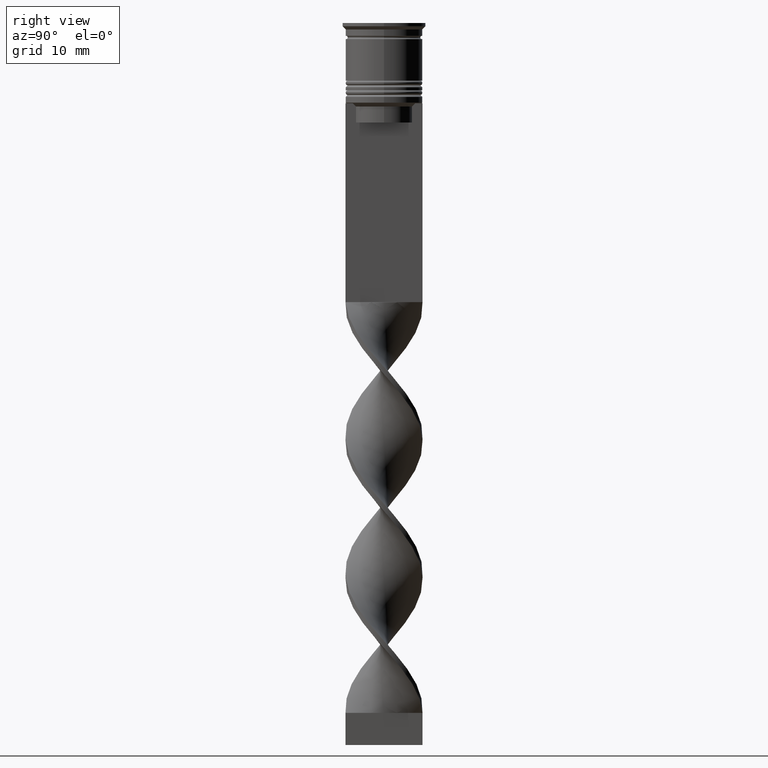
[diagram: clean part render]
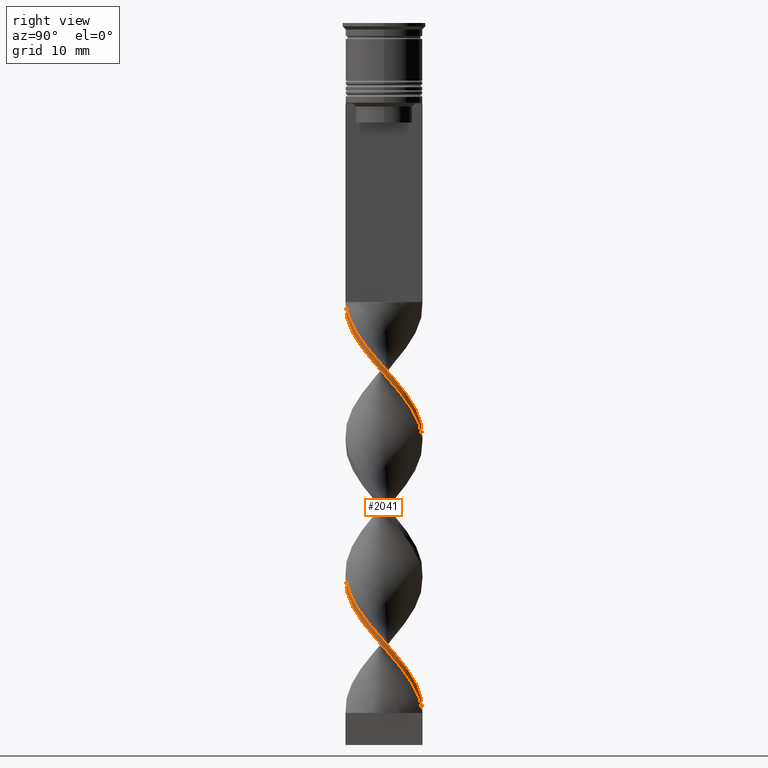
[diagram: same view with one face highlighted and labeled with its STEP entity id]
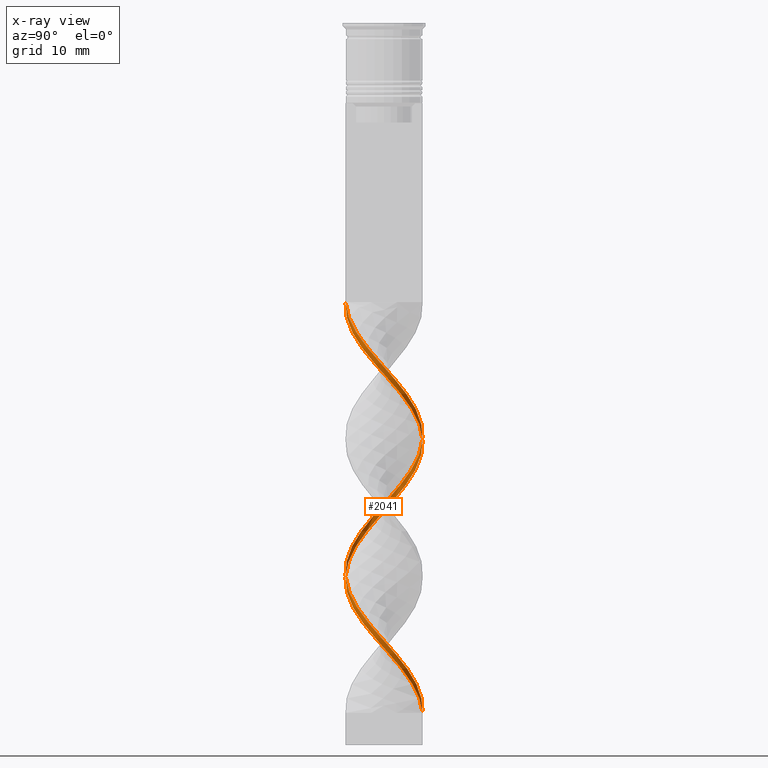
[diagram: x-ray of the same camera — body ghosted, the highlighted face saturated]
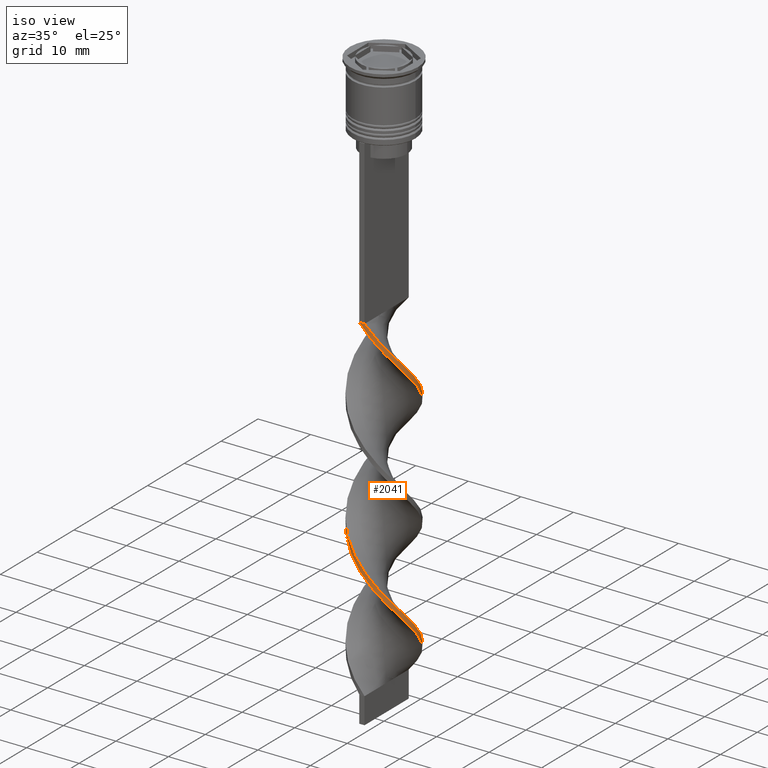
[diagram: same view with one face highlighted and labeled with its STEP entity id]
A machine part, right view. The second image highlights one B-rep face of the part: STEP entity #2041.
The next image is the same camera in x-ray: the body ghosted, the highlighted face saturated — about 0% of this face is hidden behind the body in this view.
A second angle (iso view) of the same face is appended — the face is thin or edge-on in the first view.
In plain terms, the highlighted face is a freeform B-spline surface patch.
Its self-contained STEP definition (entity closure, byte-faithful):
#1 = CARTESIAN_POINT ( 'NONE',  ( 5.747901747727229171, -1.935476698729089451, -52.52564102564103621 ) ) ;
#21 = CARTESIAN_POINT ( 'NONE',  ( 6.016521584715985860, 0.2268656444829105501, -97.65384615384614619 ) ) ;
#25 = CARTESIAN_POINT ( 'NONE',  ( -0.2285318993335664073, -6.060710991611129472, -85.34615384615383959 ) ) ;
#35 = CARTESIAN_POINT ( 'NONE',  ( 5.787399899633756561, 1.660121200912505479, -99.29487179487178139 ) ) ;
#36 = CARTESIAN_POINT ( 'NONE',  ( 0.5000000000000002220, -6.000000000000000000, -43.50000000000000000 ) ) ;
#40 = CARTESIAN_POINT ( 'NONE',  ( 3.231067045089215828, -5.080374567897375293, -89.44871794871794179 ) ) ;
#52 = CARTESIAN_POINT ( 'NONE',  ( 1.228531899333565880, 5.939289008388869640, -64.01282051282051100 ) ) ;
#58 = CARTESIAN_POINT ( 'NONE',  ( 4.352991323530322809, 4.159503159906207337, -59.91025641025640880 ) ) ;
#71 = CARTESIAN_POINT ( 'NONE',  ( 5.787399899633755673, -1.660121200912507033, -51.70512820512820440 ) ) ;
#85 = CARTESIAN_POINT ( 'NONE',  ( 3.018907784180935305, 5.260288998093234802, -103.3974358974358694 ) ) ;
#100 = CARTESIAN_POINT ( 'NONE',  ( 5.432795012591220107, -2.595137443597922200, -94.37179487179486159 ) ) ;
#106 = CARTESIAN_POINT ( 'NONE',  ( 2.614197889543182107, -5.472697136436196708, -45.96153846153845990 ) ) ;
#115 = CARTESIAN_POINT ( 'NONE',  ( 2.614197889543183884, 5.472697136436196708, -105.0384615384615330 ) ) ;
#150 = CARTESIAN_POINT ( 'NONE',  ( -3.847936200635250881, -4.688051999358552990, -82.06410256410255499 ) ) ;
#157 = CARTESIAN_POINT ( 'NONE',  ( -0.9504230770123257566, -5.945308736700090080, -84.52564102564103621 ) ) ;
#163 = CARTESIAN_POINT ( 'NONE',  ( -2.614197889543184328, -5.472697136436196708, -83.70512820512820440 ) ) ;
#169 = CARTESIAN_POINT ( 'NONE',  ( 3.018907784180934417, 5.260288998093234802, -60.73076923076922640 ) ) ;
#190 = CARTESIAN_POINT ( 'NONE',  ( 2.345611019436006472, 5.545097739941142301, -104.2179487179487012 ) ) ;
#205 = CARTESIAN_POINT ( 'NONE',  ( -5.895984904460662257, -1.219574518580961220, -76.32051282051281760 ) ) ;
#216 = CARTESIAN_POINT ( 'NONE',  ( -3.231067045089215828, 5.080374567897375293, -68.11538461538459899 ) ) ;
#220 = CARTESIAN_POINT ( 'NONE',  ( 4.352991323530321033, -4.159503159906209113, -91.08974358974359120 ) ) ;
#234 = VECTOR ( 'NONE', #1381, 1000.000000000000000 ) ;
#236 = CARTESIAN_POINT ( 'NONE',  ( -5.895984904460663145, -1.219574518580961442, -76.32051282051281760 ) ) ;
#249 = CARTESIAN_POINT ( 'NONE',  ( 4.352991323530322809, 4.159503159906207337, -59.91025641025640880 ) ) ;
#253 = CARTESIAN_POINT ( 'NONE',  ( 6.016521584715985860, -0.2268656444829121599, -53.34615384615383959 ) ) ;
#267 = CARTESIAN_POINT ( 'NONE',  ( 4.190053366537507706, 4.384962638200771146, -101.7564102564102484 ) ) ;
#279 = CARTESIAN_POINT ( 'NONE',  ( 5.432795012591220107, -2.595137443597922200, -94.37179487179486159 ) ) ;
#284 = CARTESIAN_POINT ( 'NONE',  ( 2.614197889543183884, 5.472697136436196708, -62.37179487179486870 ) ) ;
#301 = CARTESIAN_POINT ( 'NONE',  ( 3.604480575359220396, -4.822625818147004750, -91.08974358974359120 ) ) ;
#307 = CARTESIAN_POINT ( 'NONE',  ( 0.9504230770123225369, 5.945308736700090968, -105.8589743589743506 ) ) ;
#316 = CARTESIAN_POINT ( 'NONE',  ( -0.2285318993335620774, 6.060710991611130360, -65.65384615384614619 ) ) ;
#321 = CARTESIAN_POINT ( 'NONE',  ( 6.044068061194097119, 0.5036723384328413156, -96.83333333333332860 ) ) ;
#336 = CARTESIAN_POINT ( 'NONE',  ( -0.4999999999999994449, 6.000000000000000000, -107.5000000000000000 ) ) ;
#361 = CARTESIAN_POINT ( 'NONE',  ( 5.747901747727229171, -1.935476698729089451, -95.19230769230769340 ) ) ;
#362 = CARTESIAN_POINT ( 'NONE',  ( -0.1666666666666661578, 5.999999999999999112, -107.5000000000000000 ) ) ;
#378 = CARTESIAN_POINT ( 'NONE',  ( 4.352991323530322809, 4.159503159906207337, -102.5769230769230660 ) ) ;
#392 = CARTESIAN_POINT ( 'NONE',  ( 0.5000000000000005551, 6.000000000000000000, -107.5000000000000000 ) ) ;
#414 = CARTESIAN_POINT ( 'NONE',  ( -3.018907784180934417, 5.260288998093236579, -68.93589743589743080 ) ) ;
#420 = CARTESIAN_POINT ( 'NONE',  ( 4.858046446425392517, -3.630954320453864348, -91.91025641025643722 ) ) ;
#428 = CARTESIAN_POINT ( 'NONE',  ( -5.787399899633756561, -1.660121200912506367, -77.96153846153845279 ) ) ;
#434 = CARTESIAN_POINT ( 'NONE',  ( -4.858046446425391629, 3.630954320453866568, -70.57692307692306599 ) ) ;
#442 = CARTESIAN_POINT ( 'NONE',  ( 3.018907784180934417, -5.260288998093235691, -47.60256410256409509 ) ) ;
#450 = CARTESIAN_POINT ( 'NONE',  ( 1.672314254691078972, 5.829906481789051576, -62.37179487179486870 ) ) ;
#459 = CARTESIAN_POINT ( 'NONE',  ( 5.895984904460662257, -1.219574518580966105, -53.34615384615383959 ) ) ;
#467 = CARTESIAN_POINT ( 'NONE',  ( 5.432795012591220996, 2.595137443597920424, -56.62820512820513130 ) ) ;
#471 = CARTESIAN_POINT ( 'NONE',  ( 3.604480575359220840, 4.822625818147002086, -59.91025641025640880 ) ) ;
#487 = CARTESIAN_POINT ( 'NONE',  ( -5.117688277455215484, -3.254798188466750286, -78.78205128205127039 ) ) ;
#493 = CARTESIAN_POINT ( 'NONE',  ( 2.345611019436006028, -5.545097739941144077, -46.78205128205127750 ) ) ;
#518 = CARTESIAN_POINT ( 'NONE',  ( 1.921364894438372772, -5.705993072412534062, -45.14102564102563520 ) ) ;
#536 = CARTESIAN_POINT ( 'NONE',  ( -5.747901747727230060, -1.935476698729087008, -77.14102564102563520 ) ) ;
#537 = ORIENTED_EDGE ( 'NONE', *, *, #2718, .F. ) ;
#547 = CARTESIAN_POINT ( 'NONE',  ( 0.9504230770123207606, -5.945308736700090968, -87.80769230769230660 ) ) ;
#553 = CARTESIAN_POINT ( 'NONE',  ( 0.5000000000000005551, 6.000000000000000000, -64.83333333333332860 ) ) ;
#564 = CARTESIAN_POINT ( 'NONE',  ( 3.231067045089216716, 5.080374567897374405, -61.55128205128204399 ) ) ;
#570 = CARTESIAN_POINT ( 'NONE',  ( 3.604480575359221728, 4.822625818147002974, -102.5769230769230660 ) ) ;
#588 = CARTESIAN_POINT ( 'NONE',  ( -1.921364894438377657, -5.705993072412531397, -84.52564102564103621 ) ) ;
#593 = CARTESIAN_POINT ( 'NONE',  ( 3.847936200635250437, -4.688051999358553878, -90.26923076923075939 ) ) ;
#610 = CARTESIAN_POINT ( 'NONE',  ( 1.228531899333566102, 5.939289008388869640, -64.01282051282051100 ) ) ;
#617 = CARTESIAN_POINT ( 'NONE',  ( 5.747901747727227395, 1.935476698729089229, -55.80769230769230660 ) ) ;
#625 = CARTESIAN_POINT ( 'NONE',  ( 1.228531899333563659, -5.939289008388869640, -86.98717948717948900 ) ) ;
#648 = CARTESIAN_POINT ( 'NONE',  ( -4.653870821996360263, 3.819880413333763158, -71.39743589743588359 ) ) ;
#662 = CARTESIAN_POINT ( 'NONE',  ( 5.787399899633756561, 1.660121200912505479, -99.29487179487178139 ) ) ;
#699 = CARTESIAN_POINT ( 'NONE',  ( -5.988975108237873712, -0.9574036273986618051, -77.14102564102563520 ) ) ;
#722 = CARTESIAN_POINT ( 'NONE',  ( 3.231067045089215828, -5.080374567897374405, -89.44871794871794179 ) ) ;
#727 = ORIENTED_EDGE ( 'NONE', *, *, #2277, .T. ) ;
#728 = CARTESIAN_POINT ( 'NONE',  ( -0.4999999999999997780, -6.000000000000000000, -43.50000000000000000 ) ) ;
#733 = CARTESIAN_POINT ( 'NONE',  ( 4.352991323530321921, -4.159503159906209113, -48.42307692307691269 ) ) ;
#738 = CARTESIAN_POINT ( 'NONE',  ( 5.432795012591220107, 2.595137443597919980, -99.29487179487178139 ) ) ;
#747 = CARTESIAN_POINT ( 'NONE',  ( 6.016521584715985860, 0.2268656444829105501, -54.98717948717948190 ) ) ;
#754 = CARTESIAN_POINT ( 'NONE',  ( 5.895984904460662257, 1.219574518580964551, -54.98717948717948190 ) ) ;
#760 = CARTESIAN_POINT ( 'NONE',  ( -5.221935568727515076, 2.996896547440107028, -71.39743589743588359 ) ) ;
#768 = CARTESIAN_POINT ( 'NONE',  ( 5.787399899633756561, 1.660121200912505479, -56.62820512820513130 ) ) ;
#772 = CARTESIAN_POINT ( 'NONE',  ( -6.044068061194097119, -0.5036723384328405384, -75.49999999999998579 ) ) ;
#782 = VERTEX_POINT ( 'NONE', #1049 ) ;
#783 = CARTESIAN_POINT ( 'NONE',  ( 1.672314254691077640, -5.829906481789053352, -45.96153846153845990 ) ) ;
#788 = CARTESIAN_POINT ( 'NONE',  ( 4.858046446425393405, -3.630954320453865236, -49.24358974358973740 ) ) ;
#800 = CARTESIAN_POINT ( 'NONE',  ( 5.988975108237873712, 0.9574036273986640255, -98.47435897435896379 ) ) ;
#807 = CARTESIAN_POINT ( 'NONE',  ( -4.352991323530321033, 4.159503159906210001, -69.75641025641024839 ) ) ;
#821 = CARTESIAN_POINT ( 'NONE',  ( -4.858046446425396070, -3.630954320453860351, -80.42307692307691980 ) ) ;
#828 = CARTESIAN_POINT ( 'NONE',  ( -3.018907784180935749, -5.260288998093234802, -82.06410256410255499 ) ) ;
#839 = CARTESIAN_POINT ( 'NONE',  ( 5.117688277455213708, -3.254798188466753839, -93.55128205128204399 ) ) ;
#842 = VERTEX_POINT ( 'NONE', #3131 ) ;
#844 = CARTESIAN_POINT ( 'NONE',  ( 5.117688277455213708, 3.254798188466753395, -100.1153846153846274 ) ) ;
#856 = CARTESIAN_POINT ( 'NONE',  ( -5.221935568727517740, -2.996896547440105252, -79.60256410256410220 ) ) ;
#861 = CARTESIAN_POINT ( 'NONE',  ( 5.221935568727516852, 2.996896547440106140, -58.26923076923076650 ) ) ;
#877 = CARTESIAN_POINT ( 'NONE',  ( -6.016521584715984972, -0.2268656444829071639, -76.32051282051281760 ) ) ;
#883 = CARTESIAN_POINT ( 'NONE',  ( 4.858046446425393405, -3.630954320453865236, -91.91025641025643722 ) ) ;
#889 = CARTESIAN_POINT ( 'NONE',  ( 5.895984904460661369, 1.219574518580964329, -54.98717948717948190 ) ) ;
#899 = CARTESIAN_POINT ( 'NONE',  ( 5.432795012591220107, -2.595137443597922200, -51.70512820512820440 ) ) ;
#915 = CARTESIAN_POINT ( 'NONE',  ( 3.231067045089216716, 5.080374567897374405, -104.2179487179487012 ) ) ;
#925 = CARTESIAN_POINT ( 'NONE',  ( 5.221935568727515076, -2.996896547440107028, -50.06410256410256210 ) ) ;
#950 = CARTESIAN_POINT ( 'NONE',  ( 0.2285318993335633819, -6.060710991611129472, -86.98717948717948900 ) ) ;
#958 = CARTESIAN_POINT ( 'NONE',  ( 1.921364894438372550, -5.705993072412533174, -45.14102564102563520 ) ) ;
#968 = CARTESIAN_POINT ( 'NONE',  ( -2.345611019436006028, 5.545097739941144077, -68.11538461538459899 ) ) ;
#975 = CARTESIAN_POINT ( 'NONE',  ( 6.044068061194096231, 0.5036723384328413156, -96.83333333333332860 ) ) ;
#997 = CARTESIAN_POINT ( 'NONE',  ( 5.787399899633755673, -1.660121200912507033, -94.37179487179486159 ) ) ;
#1008 = CARTESIAN_POINT ( 'NONE',  ( -4.858046446425391629, 3.630954320453866568, -70.57692307692306599 ) ) ;
#1011 = CARTESIAN_POINT ( 'NONE',  ( -5.747901747727229171, -1.935476698729087008, -77.14102564102563520 ) ) ;
#1026 = CARTESIAN_POINT ( 'NONE',  ( 4.190053366537507706, 4.384962638200772034, -59.08974358974358410 ) ) ;
#1038 = CARTESIAN_POINT ( 'NONE',  ( 3.604480575359220396, -4.822625818147004750, -48.42307692307691269 ) ) ;
#1047 = CARTESIAN_POINT ( 'NONE',  ( 3.018907784180935305, 5.260288998093234802, -60.73076923076922640 ) ) ;
#1049 = CARTESIAN_POINT ( 'NONE',  ( 0.5000000000000005551, 6.000000000000000000, -107.5000000000000000 ) ) ;
#1053 = CARTESIAN_POINT ( 'NONE',  ( -0.4999999999999994449, 5.999999999999999112, -107.5000000000000000 ) ) ;
#1064 = CARTESIAN_POINT ( 'NONE',  ( 3.231067045089215828, -5.080374567897375293, -46.78205128205127750 ) ) ;
#1074 = CARTESIAN_POINT ( 'NONE',  ( 3.847936200635250881, 4.688051999358552990, -103.3974358974358836 ) ) ;
#1079 = CARTESIAN_POINT ( 'NONE',  ( 5.117688277455213708, 3.254798188466753395, -57.44871794871794890 ) ) ;
#1089 = CARTESIAN_POINT ( 'NONE',  ( 2.614197889543183884, 5.472697136436196708, -62.37179487179486870 ) ) ;
#1099 = CARTESIAN_POINT ( 'NONE',  ( 5.585824691029640299, 2.362838774426348376, -57.44871794871794890 ) ) ;
#1114 = CARTESIAN_POINT ( 'NONE',  ( 5.585824691029639411, 2.362838774426348376, -100.1153846153846132 ) ) ;
#1120 = CARTESIAN_POINT ( 'NONE',  ( 5.585824691029640299, -2.362838774426348820, -93.55128205128204399 ) ) ;
#1131 = CARTESIAN_POINT ( 'NONE',  ( 4.352991323530322809, 4.159503159906207337, -102.5769230769230660 ) ) ;
#1136 = CARTESIAN_POINT ( 'NONE',  ( 3.018907784180934861, -5.260288998093235691, -47.60256410256408799 ) ) ;
#1146 = CARTESIAN_POINT ( 'NONE',  ( -5.988975108237874601, -0.9574036273986618051, -77.14102564102563520 ) ) ;
#1152 = CARTESIAN_POINT ( 'NONE',  ( 0.5000000000000002220, -6.000000000000000000, -86.16666666666667140 ) ) ;
#1162 = ORIENTED_EDGE ( 'NONE', *, *, #1458, .T. ) ;
#1164 = CARTESIAN_POINT ( 'NONE',  ( 5.988975108237873712, -0.9574036273986640255, -52.52564102564102910 ) ) ;
#1174 = CARTESIAN_POINT ( 'NONE',  ( -2.345611019436010025, -5.545097739941143189, -82.88461538461537259 ) ) ;
#1191 = CARTESIAN_POINT ( 'NONE',  ( 4.858046446425394294, 3.630954320453863016, -101.7564102564102484 ) ) ;
#1196 = CARTESIAN_POINT ( 'NONE',  ( 3.847936200635249993, -4.688051999358552990, -47.60256410256409509 ) ) ;
#1228 = CARTESIAN_POINT ( 'NONE',  ( 0.9504230770123207606, -5.945308736700090968, -87.80769230769230660 ) ) ;
#1240 = CARTESIAN_POINT ( 'NONE',  ( 3.018907784180934861, -5.260288998093235691, -90.26923076923075939 ) ) ;
#1246 = CARTESIAN_POINT ( 'NONE',  ( -6.044068061194096231, -0.5036723384328406494, -75.50000000000000000 ) ) ;
#1252 = CARTESIAN_POINT ( 'NONE',  ( 5.117688277455213708, -3.254798188466753839, -50.88461538461537970 ) ) ;
#1253 = CARTESIAN_POINT ( 'NONE',  ( 1.672314254691077862, -5.829906481789053352, -88.62820512820513841 ) ) ;
#1261 = CARTESIAN_POINT ( 'NONE',  ( 0.2285318993335655469, 6.060710991611129472, -64.01282051282051100 ) ) ;
#1283 = CARTESIAN_POINT ( 'NONE',  ( -5.432795012591220107, -2.595137443597920868, -77.96153846153845279 ) ) ;
#1299 = CARTESIAN_POINT ( 'NONE',  ( 2.614197889543182107, -5.472697136436197596, -45.96153846153845279 ) ) ;
#1303 = CARTESIAN_POINT ( 'NONE',  ( -0.4999999999999994449, 5.999999999999999112, -64.83333333333332860 ) ) ;
#1314 = CARTESIAN_POINT ( 'NONE',  ( -5.221935568727515964, 2.996896547440107472, -71.39743589743588359 ) ) ;
#1317 = CARTESIAN_POINT ( 'NONE',  ( 4.190053366537507706, 4.384962638200772034, -101.7564102564102484 ) ) ;
#1348 = CARTESIAN_POINT ( 'NONE',  ( -2.614197889543184328, -5.472697136436196708, -83.70512820512820440 ) ) ;
#1352 = CARTESIAN_POINT ( 'NONE',  ( -0.4999999999999994449, 6.000000000000000000, -64.83333333333332860 ) ) ;
#1363 = CARTESIAN_POINT ( 'NONE',  ( 0.5000000000000005551, 6.000000000000000000, -64.83333333333332860 ) ) ;
#1367 = CARTESIAN_POINT ( 'NONE',  ( 5.221935568727515964, -2.996896547440107472, -92.73076923076922640 ) ) ;
#1380 = CARTESIAN_POINT ( 'NONE',  ( -5.585824691029640299, -2.362838774426345712, -78.78205128205127039 ) ) ;
#1381 = DIRECTION ( 'NONE',  ( -1.000000000000000000, 0.000000000000000000, 0.000000000000000000 ) ) ;
#1389 = CARTESIAN_POINT ( 'NONE',  ( 0.2285318993335633819, -6.060710991611129472, -44.32051282051282470 ) ) ;
#1401 = CARTESIAN_POINT ( 'NONE',  ( 4.653870821996360263, -3.819880413333763158, -92.73076923076922640 ) ) ;
#1408 = CARTESIAN_POINT ( 'NONE',  ( 2.614197889543182107, -5.472697136436197596, -88.62820512820513841 ) ) ;
#1418 = CARTESIAN_POINT ( 'NONE',  ( -3.847936200635251325, -4.688051999358552990, -82.06410256410255499 ) ) ;
#1424 = CARTESIAN_POINT ( 'NONE',  ( 4.653870821996360263, -3.819880413333763158, -50.06410256410256210 ) ) ;
#1432 = CARTESIAN_POINT ( 'NONE',  ( 5.585824691029638522, -2.362838774426348376, -50.88461538461537970 ) ) ;
#1442 = CARTESIAN_POINT ( 'NONE',  ( 4.653870821996361151, 3.819880413333762714, -100.9358974358974308 ) ) ;
#1458 = EDGE_CURVE ( 'NONE', #842, #782, #2345, .T. ) ;
#1465 = CARTESIAN_POINT ( 'NONE',  ( -0.9504230770123187622, 5.945308736700090968, -66.47435897435896379 ) ) ;
#1481 = CARTESIAN_POINT ( 'NONE',  ( -5.747901747727229171, 1.935476698729089007, -73.85897435897436480 ) ) ;
#1518 = CARTESIAN_POINT ( 'NONE',  ( -3.604480575359219507, 4.822625818147005639, -69.75641025641024839 ) ) ;
#1527 = CARTESIAN_POINT ( 'NONE',  ( -3.018907784180934861, -5.260288998093234802, -82.06410256410255499 ) ) ;
#1532 =( BOUNDED_SURFACE ( )  B_SPLINE_SURFACE ( 1, 2, ( 
 ( #2439, #2771, #518, #1299, #1064, #2148, #733, #788, #2735, #1636, #3522, #3267, #253, #2422, #754, #1882, #467, #1079, #2455, #1576, #2133, #1047, #2720, #3005, #3021, #3287, #1352, #3596, #2209, #1594, #216, #3322, #807, #1008, #1314, #1898, #1938, #3056, #2751, #772, #236, #536, #1651, #1713, #2570, #2551, #2845, #828, #1174, #2534, #2237, #25, #1152, #625, #1670, #1408, #40, #593, #2010, #883, #1367, #1120, #2251, #2787, #2825, #321, #3362, #3113, #2309, #844, #1442, #267, #570, #85, #1972, #3091, #307, #1956, #336 ),
 ( #2803, #1389, #1731, #3420, #2509, #1136, #3402, #1693, #1424, #2591, #899, #1, #2861, #2028, #2267, #3145, #3376, #1099, #861, #1994, #58, #3346, #2291, #284, #3129, #610, #553, #3071, #1465, #3480, #968, #414, #1518, #2094, #648, #1803, #1750, #1481, #2676, #2660, #2066, #699, #428, #1826, #1790, #2949, #1537, #150, #2886, #163, #3435, #2640, #2046, #950, #1228, #1253, #2325, #1240, #2363, #2609, #3451, #3214, #100, #361, #1772, #2902, #3183, #2624, #662, #3166, #2396, #1191, #378, #3499, #915, #115, #2916, #2114, #392 ) ),
 .UNSPECIFIED., .F., .F., .F. ) 
 B_SPLINE_SURFACE_WITH_KNOTS ( ( 2, 2 ),
 ( 3, 2, 2, 2, 2, 2, 2, 2, 2, 2, 2, 2, 2, 2, 2, 2, 2, 2, 2, 2, 2, 2, 2, 2, 2, 2, 2, 2, 2, 2, 2, 2, 2, 2, 2, 2, 2, 2, 2, 3 ),
 ( 0.000000000000000000, 1.000000000000000000 ),
 ( 0.000000000000000000, 0.01923076923076923184, 0.03846153846153846367, 0.05769230769230769551, 0.07692307692307692735, 0.09615384615384615918, 0.1153846153846153910, 0.1346153846153846090, 0.1538461538461538547, 0.1730769230769230727, 0.1923076923076923184, 0.2115384615384615363, 0.2307692307692307820, 0.2500000000000000000, 0.2692307692307692180, 0.2884615384615384359, 0.3076923076923077094, 0.3269230769230769273, 0.3461538461538461453, 0.3653846153846153633, 0.3846153846153846367, 0.4038461538461538547, 0.4230769230769230727, 0.4423076923076922906, 0.4615384615384615641, 0.4807692307692307820, 0.5000000000000000000, 0.5192307692307692735, 0.5384615384615384359, 0.5576923076923077094, 0.5769230769230768718, 0.5961538461538461453, 0.6153846153846154188, 0.6346153846153845812, 0.6538461538461538547, 0.6730769230769231282, 0.6923076923076922906, 0.7115384615384615641, 0.7307692307692307265, 0.7500000000000000000 ),
 .UNSPECIFIED. ) 
 GEOMETRIC_REPRESENTATION_ITEM ( )  RATIONAL_B_SPLINE_SURFACE ( (
 ( 1.000000000000000000, 0.9927088740980539727, 1.000000000000000000, 0.9927088740980539727, 1.000000000000000000, 0.9927088740980539727, 1.000000000000000000, 0.9927088740980539727, 1.000000000000000000, 0.9927088740980539727, 1.000000000000000000, 0.9927088740980539727, 1.000000000000000000, 0.9927088740980539727, 1.000000000000000000, 0.9927088740980539727, 1.000000000000000000, 0.9927088740980539727, 1.000000000000000000, 0.9927088740980539727, 1.000000000000000000, 0.9927088740980539727, 1.000000000000000000, 0.9927088740980539727, 1.000000000000000000, 0.9927088740980539727, 1.000000000000000000, 0.9927088740980539727, 1.000000000000000000, 0.9927088740980539727, 1.000000000000000000, 0.9927088740980539727, 1.000000000000000000, 0.9927088740980539727, 1.000000000000000000, 0.9927088740980539727, 1.000000000000000000, 0.9927088740980539727, 1.000000000000000000, 0.9927088740980539727, 1.000000000000000000, 0.9927088740980539727, 1.000000000000000000, 0.9927088740980539727, 1.000000000000000000, 0.9927088740980539727, 1.000000000000000000, 0.9927088740980539727, 1.000000000000000000, 0.9927088740980539727, 1.000000000000000000, 0.9927088740980539727, 1.000000000000000000, 0.9927088740980539727, 1.000000000000000000, 0.9927088740980539727, 1.000000000000000000, 0.9927088740980539727, 1.000000000000000000, 0.9927088740980539727, 1.000000000000000000, 0.9927088740980539727, 1.000000000000000000, 0.9927088740980539727, 1.000000000000000000, 0.9927088740980539727, 1.000000000000000000, 0.9927088740980539727, 1.000000000000000000, 0.9927088740980539727, 1.000000000000000000, 0.9927088740980539727, 1.000000000000000000, 0.9927088740980539727, 1.000000000000000000, 0.9927088740980539727, 1.000000000000000000, 0.9927088740980539727, 1.000000000000000000),
 ( 1.000000000000000000, 0.9927088740980539727, 1.000000000000000000, 0.9927088740980539727, 1.000000000000000000, 0.9927088740980539727, 1.000000000000000000, 0.9927088740980539727, 1.000000000000000000, 0.9927088740980539727, 1.000000000000000000, 0.9927088740980539727, 1.000000000000000000, 0.9927088740980539727, 1.000000000000000000, 0.9927088740980539727, 1.000000000000000000, 0.9927088740980539727, 1.000000000000000000, 0.9927088740980539727, 1.000000000000000000, 0.9927088740980539727, 1.000000000000000000, 0.9927088740980539727, 1.000000000000000000, 0.9927088740980539727, 1.000000000000000000, 0.9927088740980539727, 1.000000000000000000, 0.9927088740980539727, 1.000000000000000000, 0.9927088740980539727, 1.000000000000000000, 0.9927088740980539727, 1.000000000000000000, 0.9927088740980539727, 1.000000000000000000, 0.9927088740980539727, 1.000000000000000000, 0.9927088740980539727, 1.000000000000000000, 0.9927088740980539727, 1.000000000000000000, 0.9927088740980539727, 1.000000000000000000, 0.9927088740980539727, 1.000000000000000000, 0.9927088740980539727, 1.000000000000000000, 0.9927088740980539727, 1.000000000000000000, 0.9927088740980539727, 1.000000000000000000, 0.9927088740980539727, 1.000000000000000000, 0.9927088740980539727, 1.000000000000000000, 0.9927088740980539727, 1.000000000000000000, 0.9927088740980539727, 1.000000000000000000, 0.9927088740980539727, 1.000000000000000000, 0.9927088740980539727, 1.000000000000000000, 0.9927088740980539727, 1.000000000000000000, 0.9927088740980539727, 1.000000000000000000, 0.9927088740980539727, 1.000000000000000000, 0.9927088740980539727, 1.000000000000000000, 0.9927088740980539727, 1.000000000000000000, 0.9927088740980539727, 1.000000000000000000, 0.9927088740980539727, 1.000000000000000000) ) ) 
 REPRESENTATION_ITEM ( '' )  SURFACE ( )  );
#1537 = CARTESIAN_POINT ( 'NONE',  ( -4.352991323530323697, -4.159503159906206449, -81.24358974358973740 ) ) ;
#1544 = CARTESIAN_POINT ( 'NONE',  ( 0.5000000000000002220, -5.999999999999999112, -86.16666666666667140 ) ) ;
#1559 = CARTESIAN_POINT ( 'NONE',  ( -1.921364894438370552, 5.705993072412533174, -66.47435897435896379 ) ) ;
#1571 = CARTESIAN_POINT ( 'NONE',  ( 6.044068061194097119, -0.5036723384328415376, -54.16666666666666430 ) ) ;
#1576 = CARTESIAN_POINT ( 'NONE',  ( 4.190053366537507706, 4.384962638200771146, -59.08974358974359120 ) ) ;
#1579 = CARTESIAN_POINT ( 'NONE',  ( -3.231067045089215384, 5.080374567897374405, -68.11538461538459899 ) ) ;
#1594 = CARTESIAN_POINT ( 'NONE',  ( -2.614197889543180331, 5.472697136436198484, -67.29487179487178139 ) ) ;
#1598 = CARTESIAN_POINT ( 'NONE',  ( 6.016521584715984972, -0.2268656444829120489, -96.01282051282051100 ) ) ;
#1610 = FACE_OUTER_BOUND ( 'NONE', #1839, .T. ) ;
#1627 = CARTESIAN_POINT ( 'NONE',  ( -5.787399899633756561, -1.660121200912506367, -77.96153846153845279 ) ) ;
#1636 = CARTESIAN_POINT ( 'NONE',  ( 5.585824691029640299, -2.362838774426348820, -50.88461538461538680 ) ) ;
#1651 = CARTESIAN_POINT ( 'NONE',  ( -5.432795012591220996, -2.595137443597921312, -77.96153846153845279 ) ) ;
#1665 = CARTESIAN_POINT ( 'NONE',  ( 3.847936200635250881, 4.688051999358552990, -60.73076923076922640 ) ) ;
#1670 = CARTESIAN_POINT ( 'NONE',  ( 1.921364894438372772, -5.705993072412534062, -87.80769230769230660 ) ) ;
#1683 = CARTESIAN_POINT ( 'NONE',  ( -6.044068061194097119, 0.5036723384328423148, -75.50000000000000000 ) ) ;
#1693 = CARTESIAN_POINT ( 'NONE',  ( 4.190053366537506818, -4.384962638200772922, -49.24358974358973740 ) ) ;
#1705 = CARTESIAN_POINT ( 'NONE',  ( 1.672314254691077640, -5.829906481789053352, -88.62820512820512420 ) ) ;
#1713 = CARTESIAN_POINT ( 'NONE',  ( -5.117688277455215484, -3.254798188466751174, -78.78205128205127039 ) ) ;
#1731 = CARTESIAN_POINT ( 'NONE',  ( 0.9504230770123207606, -5.945308736700090968, -45.14102564102563520 ) ) ;
#1739 = CARTESIAN_POINT ( 'NONE',  ( 5.117688277455212820, 3.254798188466753395, -57.44871794871794890 ) ) ;
#1750 = CARTESIAN_POINT ( 'NONE',  ( -5.432795012591220107, 2.595137443597922644, -73.03846153846153300 ) ) ;
#1772 = CARTESIAN_POINT ( 'NONE',  ( 5.895984904460662257, -1.219574518580966105, -96.01282051282051100 ) ) ;
#1790 = CARTESIAN_POINT ( 'NONE',  ( -5.221935568727517740, -2.996896547440105252, -79.60256410256410220 ) ) ;
#1797 = B_SPLINE_CURVE_WITH_KNOTS ( 'NONE', 3,
 ( #3422, #362, #3130, #1902 ),
 .UNSPECIFIED., .F., .F.,
 ( 4, 4 ),
 ( 0.000000000000000000, 1.000000000000000000 ),
 .UNSPECIFIED. ) ;
#1803 = CARTESIAN_POINT ( 'NONE',  ( -5.117688277455211932, 3.254798188466756947, -72.21794871794871540 ) ) ;
#1816 = CARTESIAN_POINT ( 'NONE',  ( -4.352991323530320145, 4.159503159906209113, -69.75641025641024839 ) ) ;
#1826 = CARTESIAN_POINT ( 'NONE',  ( -5.585824691029640299, -2.362838774426346156, -78.78205128205127039 ) ) ;
#1833 = CARTESIAN_POINT ( 'NONE',  ( -6.016521584715984972, 0.2268656444829141028, -74.67948717948718240 ) ) ;
#1839 = EDGE_LOOP ( 'NONE', ( #727, #1162, #537, #2070 ) ) ;
#1847 = CARTESIAN_POINT ( 'NONE',  ( 2.345611019436006472, 5.545097739941142301, -61.55128205128204399 ) ) ;
#1854 = CARTESIAN_POINT ( 'NONE',  ( 0.9504230770123207606, -5.945308736700090968, -45.14102564102563520 ) ) ;
#1864 = CARTESIAN_POINT ( 'NONE',  ( 1.672314254691078972, 5.829906481789051576, -105.0384615384615188 ) ) ;
#1882 = CARTESIAN_POINT ( 'NONE',  ( 5.747901747727228283, 1.935476698729089007, -55.80769230769230660 ) ) ;
#1887 = CARTESIAN_POINT ( 'NONE',  ( 0.9504230770123223149, 5.945308736700090080, -63.19230769230768630 ) ) ;
#1893 = CARTESIAN_POINT ( 'NONE',  ( 5.221935568727516852, 2.996896547440106140, -58.26923076923076650 ) ) ;
#1898 = CARTESIAN_POINT ( 'NONE',  ( -5.585824691029638522, 2.362838774426351929, -72.21794871794871540 ) ) ;
#1902 = CARTESIAN_POINT ( 'NONE',  ( 0.5000000000000005551, 6.000000000000000000, -107.5000000000000000 ) ) ;
#1909 = CARTESIAN_POINT ( 'NONE',  ( 5.988975108237873712, 0.9574036273986640255, -55.80769230769230660 ) ) ;
#1931 = CARTESIAN_POINT ( 'NONE',  ( 1.228531899333565880, 5.939289008388869640, -106.6794871794871824 ) ) ;
#1938 = CARTESIAN_POINT ( 'NONE',  ( -5.787399899633756561, 1.660121200912507922, -73.03846153846153300 ) ) ;
#1949 = CARTESIAN_POINT ( 'NONE',  ( -3.604480575359219507, 4.822625818147005639, -69.75641025641024839 ) ) ;
#1956 = CARTESIAN_POINT ( 'NONE',  ( 0.2285318993335656579, 6.060710991611129472, -106.6794871794871682 ) ) ;
#1966 = CARTESIAN_POINT ( 'NONE',  ( 1.921364894438374549, 5.705993072412533174, -63.19230769230768630 ) ) ;
#1972 = CARTESIAN_POINT ( 'NONE',  ( 2.345611019436006917, 5.545097739941143189, -104.2179487179487012 ) ) ;
#1984 = CARTESIAN_POINT ( 'NONE',  ( 3.231067045089216716, 5.080374567897374405, -104.2179487179487012 ) ) ;
#1994 = CARTESIAN_POINT ( 'NONE',  ( 4.858046446425394294, 3.630954320453863016, -59.08974358974359120 ) ) ;
#2005 = CARTESIAN_POINT ( 'NONE',  ( 0.2285318993335633819, -6.060710991611130360, -86.98717948717948900 ) ) ;
#2010 = CARTESIAN_POINT ( 'NONE',  ( 4.352991323530321921, -4.159503159906209113, -91.08974358974359120 ) ) ;
#2028 = CARTESIAN_POINT ( 'NONE',  ( 6.044068061194097119, -0.5036723384328415376, -54.16666666666665719 ) ) ;
#2041 = ADVANCED_FACE ( 'NONE', ( #1610 ), #1532, .T. ) ;
#2046 = CARTESIAN_POINT ( 'NONE',  ( -0.4999999999999997780, -6.000000000000000000, -86.16666666666667140 ) ) ;
#2057 = CARTESIAN_POINT ( 'NONE',  ( 6.016521584715984972, -0.2268656444829120489, -53.34615384615383959 ) ) ;
#2063 = VERTEX_POINT ( 'NONE', #3467 ) ;
#2066 = CARTESIAN_POINT ( 'NONE',  ( -6.016521584715984972, -0.2268656444829071639, -76.32051282051281760 ) ) ;
#2070 = ORIENTED_EDGE ( 'NONE', *, *, #2656, .F. ) ;
#2094 = CARTESIAN_POINT ( 'NONE',  ( -4.190053366537505042, 4.384962638200773810, -70.57692307692306599 ) ) ;
#2105 = CARTESIAN_POINT ( 'NONE',  ( 3.847936200635249993, -4.688051999358552990, -90.26923076923077360 ) ) ;
#2114 = CARTESIAN_POINT ( 'NONE',  ( 1.228531899333566102, 5.939289008388869640, -106.6794871794871682 ) ) ;
#2121 = CARTESIAN_POINT ( 'NONE',  ( 5.895984904460661369, 1.219574518580964329, -97.65384615384614619 ) ) ;
#2133 = CARTESIAN_POINT ( 'NONE',  ( 3.604480575359221728, 4.822625818147002974, -59.91025641025640880 ) ) ;
#2136 = CARTESIAN_POINT ( 'NONE',  ( 5.117688277455212820, 3.254798188466753395, -100.1153846153846132 ) ) ;
#2148 = CARTESIAN_POINT ( 'NONE',  ( 3.847936200635250437, -4.688051999358553878, -47.60256410256408799 ) ) ;
#2152 = CARTESIAN_POINT ( 'NONE',  ( -5.585824691029636746, 2.362838774426351485, -72.21794871794871540 ) ) ;
#2165 = CARTESIAN_POINT ( 'NONE',  ( 4.653870821996360263, -3.819880413333763158, -50.06410256410256210 ) ) ;
#2204 = CARTESIAN_POINT ( 'NONE',  ( 1.921364894438374549, 5.705993072412533174, -105.8589743589743506 ) ) ;
#2209 = CARTESIAN_POINT ( 'NONE',  ( -1.921364894438370774, 5.705993072412534062, -66.47435897435896379 ) ) ;
#2226 = CARTESIAN_POINT ( 'NONE',  ( -3.018907784180933973, 5.260288998093236579, -68.93589743589743080 ) ) ;
#2237 = CARTESIAN_POINT ( 'NONE',  ( -0.9504230770123258676, -5.945308736700090968, -84.52564102564103621 ) ) ;
#2247 = CARTESIAN_POINT ( 'NONE',  ( 5.221935568727516852, 2.996896547440106140, -100.9358974358974308 ) ) ;
#2251 = CARTESIAN_POINT ( 'NONE',  ( 5.787399899633756561, -1.660121200912507478, -94.37179487179486159 ) ) ;
#2262 = CARTESIAN_POINT ( 'NONE',  ( -5.747901747727229171, 1.935476698729089229, -73.85897435897436480 ) ) ;
#2267 = CARTESIAN_POINT ( 'NONE',  ( 6.016521584715985860, 0.2268656444829105501, -54.98717948717948190 ) ) ;
#2277 = EDGE_CURVE ( 'NONE', #2471, #842, #2799, .T. ) ;
#2281 = CARTESIAN_POINT ( 'NONE',  ( -3.231067045089219825, -5.080374567897373517, -82.88461538461537259 ) ) ;
#2291 = CARTESIAN_POINT ( 'NONE',  ( 3.231067045089216716, 5.080374567897374405, -61.55128205128204399 ) ) ;
#2309 = CARTESIAN_POINT ( 'NONE',  ( 5.432795012591220996, 2.595137443597920424, -99.29487179487178139 ) ) ;
#2325 = CARTESIAN_POINT ( 'NONE',  ( 2.345611019436006028, -5.545097739941144077, -89.44871794871794179 ) ) ;
#2345 =( BOUNDED_CURVE ( )  B_SPLINE_CURVE ( 2, ( #728, #3298, #1854, #783, #493, #442, #1038, #2977, #2165, #1252, #3259, #3283, #459, #1571, #747, #1909, #768, #3497, #1893, #3017, #249, #1665, #564, #1089, #1966, #52, #1363, #316, #3124, #3067, #2565, #2226, #1949, #2798, #3316, #2838, #3085, #2262, #3372, #1683, #877, #1146, #1627, #1380, #856, #821, #2817, #1418, #2281, #1348, #588, #3395, #3341, #2005, #547, #1705, #2525, #3607, #301, #2488, #1401, #839, #279, #2766, #3590, #2546, #21, #800, #35, #1114, #2247, #3357, #1131, #1074, #1984, #3107, #2204, #1931, #3051 ),
 .UNSPECIFIED., .F., .T. ) 
 B_SPLINE_CURVE_WITH_KNOTS ( ( 3, 2, 2, 2, 2, 2, 2, 2, 2, 2, 2, 2, 2, 2, 2, 2, 2, 2, 2, 2, 2, 2, 2, 2, 2, 2, 2, 2, 2, 2, 2, 2, 2, 2, 2, 2, 2, 2, 2, 3 ),
 ( 0.000000000000000000, 0.01923076923076923184, 0.03846153846153846367, 0.05769230769230768857, 0.07692307692307692735, 0.09615384615384615918, 0.1153846153846153771, 0.1346153846153846090, 0.1538461538461538547, 0.1730769230769230449, 0.1923076923076923184, 0.2115384615384615363, 0.2307692307692307543, 0.2500000000000000000, 0.2692307692307692180, 0.2884615384615384359, 0.3076923076923077094, 0.3269230769230769273, 0.3461538461538460898, 0.3653846153846153633, 0.3846153846153846367, 0.4038461538461539102, 0.4230769230769230727, 0.4423076923076922906, 0.4615384615384615086, 0.4807692307692307820, 0.5000000000000000000, 0.5192307692307692735, 0.5384615384615384359, 0.5576923076923077094, 0.5769230769230768718, 0.5961538461538461453, 0.6153846153846154188, 0.6346153846153845812, 0.6538461538461538547, 0.6730769230769230171, 0.6923076923076921796, 0.7115384615384615641, 0.7307692307692307265, 0.7500000000000000000 ),
 .UNSPECIFIED. ) 
 CURVE ( )  GEOMETRIC_REPRESENTATION_ITEM ( )  RATIONAL_B_SPLINE_CURVE ( ( 1.000000000000000000, 0.9927088740980539727, 1.000000000000000000, 0.9927088740980539727, 1.000000000000000000, 0.9927088740980539727, 1.000000000000000000, 0.9927088740980539727, 1.000000000000000000, 0.9927088740980539727, 1.000000000000000000, 0.9927088740980539727, 1.000000000000000000, 0.9927088740980539727, 1.000000000000000000, 0.9927088740980539727, 1.000000000000000000, 0.9927088740980539727, 1.000000000000000000, 0.9927088740980539727, 1.000000000000000000, 0.9927088740980539727, 1.000000000000000000, 0.9927088740980539727, 1.000000000000000000, 0.9927088740980539727, 1.000000000000000000, 0.9927088740980539727, 1.000000000000000000, 0.9927088740980539727, 1.000000000000000000, 0.9927088740980539727, 1.000000000000000000, 0.9927088740980539727, 1.000000000000000000, 0.9927088740980539727, 1.000000000000000000, 0.9927088740980539727, 1.000000000000000000, 0.9927088740980539727, 1.000000000000000000, 0.9927088740980539727, 1.000000000000000000, 0.9927088740980539727, 1.000000000000000000, 0.9927088740980539727, 1.000000000000000000, 0.9927088740980539727, 1.000000000000000000, 0.9927088740980539727, 1.000000000000000000, 0.9927088740980539727, 1.000000000000000000, 0.9927088740980539727, 1.000000000000000000, 0.9927088740980539727, 1.000000000000000000, 0.9927088740980539727, 1.000000000000000000, 0.9927088740980539727, 1.000000000000000000, 0.9927088740980539727, 1.000000000000000000, 0.9927088740980539727, 1.000000000000000000, 0.9927088740980539727, 1.000000000000000000, 0.9927088740980539727, 1.000000000000000000, 0.9927088740980539727, 1.000000000000000000, 0.9927088740980539727, 1.000000000000000000, 0.9927088740980539727, 1.000000000000000000, 0.9927088740980539727, 1.000000000000000000, 0.9927088740980539727, 1.000000000000000000 ) ) 
 REPRESENTATION_ITEM ( '' )  );
#2363 = CARTESIAN_POINT ( 'NONE',  ( 3.604480575359220396, -4.822625818147004750, -91.08974358974359120 ) ) ;
#2387 = CARTESIAN_POINT ( 'NONE',  ( -4.653870821996361151, -3.819880413333761826, -79.60256410256410220 ) ) ;
#2396 = CARTESIAN_POINT ( 'NONE',  ( 5.221935568727516852, 2.996896547440106140, -100.9358974358974308 ) ) ;
#2409 = CARTESIAN_POINT ( 'NONE',  ( 2.614197889543182107, -5.472697136436196708, -88.62820512820512420 ) ) ;
#2422 = CARTESIAN_POINT ( 'NONE',  ( 6.044068061194097119, 0.5036723384328413156, -54.16666666666665719 ) ) ;
#2425 = CARTESIAN_POINT ( 'NONE',  ( -3.604480575359221728, -4.822625818147002086, -81.24358974358973740 ) ) ;
#2439 = CARTESIAN_POINT ( 'NONE',  ( 0.5000000000000002220, -6.000000000000000000, -43.50000000000000000 ) ) ;
#2444 = CARTESIAN_POINT ( 'NONE',  ( -4.190053366537509483, -4.384962638200769369, -80.42307692307691980 ) ) ;
#2455 = CARTESIAN_POINT ( 'NONE',  ( 4.653870821996361151, 3.819880413333762714, -58.26923076923076650 ) ) ;
#2461 = CARTESIAN_POINT ( 'NONE',  ( 0.9504230770123223149, 5.945308736700090080, -105.8589743589743506 ) ) ;
#2471 = VERTEX_POINT ( 'NONE', #2924 ) ;
#2488 = CARTESIAN_POINT ( 'NONE',  ( 4.190053366537506818, -4.384962638200773810, -91.91025641025643722 ) ) ;
#2509 = CARTESIAN_POINT ( 'NONE',  ( 2.345611019436006028, -5.545097739941144077, -46.78205128205127750 ) ) ;
#2525 = CARTESIAN_POINT ( 'NONE',  ( 2.345611019436006028, -5.545097739941144077, -89.44871794871794179 ) ) ;
#2534 = CARTESIAN_POINT ( 'NONE',  ( -1.672314254691080304, -5.829906481789053352, -83.70512820512820440 ) ) ;
#2546 = CARTESIAN_POINT ( 'NONE',  ( 6.044068061194097119, -0.5036723384328415376, -96.83333333333332860 ) ) ;
#2551 = CARTESIAN_POINT ( 'NONE',  ( -4.190053366537510371, -4.384962638200768481, -80.42307692307691980 ) ) ;
#2565 = CARTESIAN_POINT ( 'NONE',  ( -2.345611019436006028, 5.545097739941144077, -68.11538461538459899 ) ) ;
#2570 = CARTESIAN_POINT ( 'NONE',  ( -4.653870821996362039, -3.819880413333761826, -79.60256410256410220 ) ) ;
#2577 = CARTESIAN_POINT ( 'NONE',  ( 0.5000000000000002220, -5.999999999999999112, -43.50000000000000000 ) ) ;
#2591 = CARTESIAN_POINT ( 'NONE',  ( 5.117688277455213708, -3.254798188466753839, -50.88461538461538680 ) ) ;
#2609 = CARTESIAN_POINT ( 'NONE',  ( 4.190053366537506818, -4.384962638200772922, -91.91025641025643722 ) ) ;
#2624 = CARTESIAN_POINT ( 'NONE',  ( 5.988975108237873712, 0.9574036273986641365, -98.47435897435896379 ) ) ;
#2640 = CARTESIAN_POINT ( 'NONE',  ( -1.228531899333566990, -5.939289008388869640, -85.34615384615383959 ) ) ;
#2656 = EDGE_CURVE ( 'NONE', #2471, #2063, #3570, .T. ) ;
#2660 = CARTESIAN_POINT ( 'NONE',  ( -6.044068061194097119, 0.5036723384328423148, -75.49999999999998579 ) ) ;
#2666 = CARTESIAN_POINT ( 'NONE',  ( -3.847936200635249104, 4.688051999358553878, -68.93589743589743080 ) ) ;
#2676 = CARTESIAN_POINT ( 'NONE',  ( -5.895984904460662257, 1.219574518580968325, -74.67948717948718240 ) ) ;
#2683 = CARTESIAN_POINT ( 'NONE',  ( 1.228531899333563215, -5.939289008388868751, -86.98717948717948900 ) ) ;
#2707 = CARTESIAN_POINT ( 'NONE',  ( 3.018907784180934417, 5.260288998093234802, -103.3974358974358836 ) ) ;
#2718 = EDGE_CURVE ( 'NONE', #2063, #782, #1797, .T. ) ;
#2720 = CARTESIAN_POINT ( 'NONE',  ( 2.345611019436006917, 5.545097739941143189, -61.55128205128204399 ) ) ;
#2724 = CARTESIAN_POINT ( 'NONE',  ( -5.988975108237873712, 0.9574036273986635814, -73.85897435897436480 ) ) ;
#2735 = CARTESIAN_POINT ( 'NONE',  ( 5.221935568727515964, -2.996896547440107472, -50.06410256410256210 ) ) ;
#2739 = CARTESIAN_POINT ( 'NONE',  ( 5.747901747727227395, 1.935476698729089229, -98.47435897435896379 ) ) ;
#2751 = CARTESIAN_POINT ( 'NONE',  ( -6.016521584715985860, 0.2268656444829142138, -74.67948717948718240 ) ) ;
#2766 = CARTESIAN_POINT ( 'NONE',  ( 5.747901747727229171, -1.935476698729089451, -95.19230769230769340 ) ) ;
#2771 = CARTESIAN_POINT ( 'NONE',  ( 1.228531899333563659, -5.939289008388869640, -44.32051282051282470 ) ) ;
#2787 = CARTESIAN_POINT ( 'NONE',  ( 5.988975108237873712, -0.9574036273986643586, -95.19230769230769340 ) ) ;
#2798 = CARTESIAN_POINT ( 'NONE',  ( -4.190053366537505042, 4.384962638200774698, -70.57692307692306599 ) ) ;
#2799 = LINE ( 'NONE', #36, #234 ) ;
#2803 = CARTESIAN_POINT ( 'NONE',  ( -0.4999999999999997780, -6.000000000000000000, -43.50000000000000000 ) ) ;
#2817 = CARTESIAN_POINT ( 'NONE',  ( -4.352991323530323697, -4.159503159906206449, -81.24358974358973740 ) ) ;
#2825 = CARTESIAN_POINT ( 'NONE',  ( 6.016521584715985860, -0.2268656444829121599, -96.01282051282051100 ) ) ;
#2838 = CARTESIAN_POINT ( 'NONE',  ( -5.117688277455211932, 3.254798188466756503, -72.21794871794871540 ) ) ;
#2845 = CARTESIAN_POINT ( 'NONE',  ( -3.604480575359222616, -4.822625818147002086, -81.24358974358973740 ) ) ;
#2851 = CARTESIAN_POINT ( 'NONE',  ( 4.352991323530321033, -4.159503159906209113, -48.42307692307691269 ) ) ;
#2861 = CARTESIAN_POINT ( 'NONE',  ( 5.895984904460662257, -1.219574518580966105, -53.34615384615383959 ) ) ;
#2886 = CARTESIAN_POINT ( 'NONE',  ( -3.231067045089219825, -5.080374567897373517, -82.88461538461537259 ) ) ;
#2902 = CARTESIAN_POINT ( 'NONE',  ( 6.044068061194097119, -0.5036723384328415376, -96.83333333333332860 ) ) ;
#2916 = CARTESIAN_POINT ( 'NONE',  ( 1.921364894438374549, 5.705993072412533174, -105.8589743589743506 ) ) ;
#2924 = CARTESIAN_POINT ( 'NONE',  ( 0.5000000000000002220, -5.999999999999999112, -43.50000000000000000 ) ) ;
#2942 = CARTESIAN_POINT ( 'NONE',  ( -0.2285318993335662963, -6.060710991611129472, -85.34615384615385381 ) ) ;
#2949 = CARTESIAN_POINT ( 'NONE',  ( -4.858046446425396070, -3.630954320453860351, -80.42307692307691980 ) ) ;
#2955 = CARTESIAN_POINT ( 'NONE',  ( -5.787399899633755673, 1.660121200912507478, -73.03846153846153300 ) ) ;
#2969 = CARTESIAN_POINT ( 'NONE',  ( -2.614197889543180331, 5.472697136436197596, -67.29487179487178139 ) ) ;
#2977 = CARTESIAN_POINT ( 'NONE',  ( 4.190053366537506818, -4.384962638200773810, -49.24358974358974450 ) ) ;
#2991 = CARTESIAN_POINT ( 'NONE',  ( 4.653870821996360263, 3.819880413333762270, -100.9358974358974308 ) ) ;
#3005 = CARTESIAN_POINT ( 'NONE',  ( 1.672314254691079638, 5.829906481789052464, -62.37179487179486870 ) ) ;
#3008 = CARTESIAN_POINT ( 'NONE',  ( 5.988975108237873712, -0.9574036273986640255, -95.19230769230769340 ) ) ;
#3017 = CARTESIAN_POINT ( 'NONE',  ( 4.858046446425394294, 3.630954320453863016, -59.08974358974358410 ) ) ;
#3021 = CARTESIAN_POINT ( 'NONE',  ( 0.9504230770123225369, 5.945308736700090968, -63.19230769230768630 ) ) ;
#3051 = CARTESIAN_POINT ( 'NONE',  ( 0.5000000000000005551, 6.000000000000000000, -107.5000000000000000 ) ) ;
#3056 = CARTESIAN_POINT ( 'NONE',  ( -5.988975108237873712, 0.9574036273986639145, -73.85897435897436480 ) ) ;
#3067 = CARTESIAN_POINT ( 'NONE',  ( -1.672314254691075641, 5.829906481789053352, -67.29487179487178139 ) ) ;
#3071 = CARTESIAN_POINT ( 'NONE',  ( -0.2285318993335620774, 6.060710991611129472, -65.65384615384614619 ) ) ;
#3085 = CARTESIAN_POINT ( 'NONE',  ( -5.432795012591220107, 2.595137443597922644, -73.03846153846153300 ) ) ;
#3091 = CARTESIAN_POINT ( 'NONE',  ( 1.672314254691079638, 5.829906481789052464, -105.0384615384615330 ) ) ;
#3107 = CARTESIAN_POINT ( 'NONE',  ( 2.614197889543183884, 5.472697136436196708, -105.0384615384615188 ) ) ;
#3113 = CARTESIAN_POINT ( 'NONE',  ( 5.747901747727228283, 1.935476698729089007, -98.47435897435896379 ) ) ;
#3124 = CARTESIAN_POINT ( 'NONE',  ( -0.9504230770123187622, 5.945308736700090968, -66.47435897435896379 ) ) ;
#3129 = CARTESIAN_POINT ( 'NONE',  ( 1.921364894438374549, 5.705993072412533174, -63.19230769230768630 ) ) ;
#3130 = CARTESIAN_POINT ( 'NONE',  ( 0.1666666666666672403, 6.000000000000000000, -107.5000000000000000 ) ) ;
#3131 = CARTESIAN_POINT ( 'NONE',  ( -0.4999999999999997780, -6.000000000000000000, -43.50000000000000000 ) ) ;
#3135 = CARTESIAN_POINT ( 'NONE',  ( 5.432795012591220107, 2.595137443597919980, -56.62820512820513130 ) ) ;
#3145 = CARTESIAN_POINT ( 'NONE',  ( 5.988975108237873712, 0.9574036273986641365, -55.80769230769230660 ) ) ;
#3166 = CARTESIAN_POINT ( 'NONE',  ( 5.585824691029640299, 2.362838774426348376, -100.1153846153846274 ) ) ;
#3183 = CARTESIAN_POINT ( 'NONE',  ( 6.016521584715985860, 0.2268656444829105501, -97.65384615384614619 ) ) ;
#3204 = CARTESIAN_POINT ( 'NONE',  ( 3.231067045089215828, -5.080374567897374405, -46.78205128205127750 ) ) ;
#3214 = CARTESIAN_POINT ( 'NONE',  ( 5.117688277455213708, -3.254798188466753839, -93.55128205128204399 ) ) ;
#3224 = CARTESIAN_POINT ( 'NONE',  ( 5.221935568727515076, -2.996896547440107028, -92.73076923076922640 ) ) ;
#3239 = CARTESIAN_POINT ( 'NONE',  ( 1.921364894438372550, -5.705993072412533174, -87.80769230769230660 ) ) ;
#3252 = CARTESIAN_POINT ( 'NONE',  ( 3.604480575359220840, 4.822625818147002086, -102.5769230769230660 ) ) ;
#3259 = CARTESIAN_POINT ( 'NONE',  ( 5.432795012591220107, -2.595137443597922200, -51.70512820512820440 ) ) ;
#3267 = CARTESIAN_POINT ( 'NONE',  ( 5.988975108237873712, -0.9574036273986643586, -52.52564102564103621 ) ) ;
#3274 = CARTESIAN_POINT ( 'NONE',  ( -1.672314254691079416, -5.829906481789051576, -83.70512820512820440 ) ) ;
#3283 = CARTESIAN_POINT ( 'NONE',  ( 5.747901747727229171, -1.935476698729089451, -52.52564102564102910 ) ) ;
#3287 = CARTESIAN_POINT ( 'NONE',  ( 0.2285318993335656579, 6.060710991611129472, -64.01282051282051100 ) ) ;
#3298 = CARTESIAN_POINT ( 'NONE',  ( 0.2285318993335633819, -6.060710991611130360, -44.32051282051282470 ) ) ;
#3316 = CARTESIAN_POINT ( 'NONE',  ( -4.653870821996360263, 3.819880413333763158, -71.39743589743588359 ) ) ;
#3322 = CARTESIAN_POINT ( 'NONE',  ( -3.847936200635249993, 4.688051999358554767, -68.93589743589743080 ) ) ;
#3341 = CARTESIAN_POINT ( 'NONE',  ( -0.4999999999999997780, -6.000000000000000000, -86.16666666666667140 ) ) ;
#3346 = CARTESIAN_POINT ( 'NONE',  ( 3.847936200635250437, 4.688051999358552990, -60.73076923076922640 ) ) ;
#3357 = CARTESIAN_POINT ( 'NONE',  ( 4.858046446425394294, 3.630954320453863016, -101.7564102564102484 ) ) ;
#3362 = CARTESIAN_POINT ( 'NONE',  ( 5.895984904460662257, 1.219574518580964551, -97.65384615384614619 ) ) ;
#3372 = CARTESIAN_POINT ( 'NONE',  ( -5.895984904460662257, 1.219574518580968325, -74.67948717948718240 ) ) ;
#3376 = CARTESIAN_POINT ( 'NONE',  ( 5.787399899633756561, 1.660121200912505479, -56.62820512820513130 ) ) ;
#3395 = CARTESIAN_POINT ( 'NONE',  ( -1.228531899333566768, -5.939289008388869640, -85.34615384615385381 ) ) ;
#3402 = CARTESIAN_POINT ( 'NONE',  ( 3.604480575359220396, -4.822625818147004750, -48.42307692307691269 ) ) ;
#3409 = CARTESIAN_POINT ( 'NONE',  ( 6.044068061194096231, 0.5036723384328413156, -54.16666666666666430 ) ) ;
#3420 = CARTESIAN_POINT ( 'NONE',  ( 1.672314254691077862, -5.829906481789053352, -45.96153846153845279 ) ) ;
#3422 = CARTESIAN_POINT ( 'NONE',  ( -0.4999999999999994449, 5.999999999999999112, -107.5000000000000000 ) ) ;
#3435 = CARTESIAN_POINT ( 'NONE',  ( -1.921364894438377657, -5.705993072412531397, -84.52564102564103621 ) ) ;
#3439 = CARTESIAN_POINT ( 'NONE',  ( 4.858046446425392517, -3.630954320453864348, -49.24358974358974450 ) ) ;
#3451 = CARTESIAN_POINT ( 'NONE',  ( 4.653870821996360263, -3.819880413333763158, -92.73076923076922640 ) ) ;
#3467 = CARTESIAN_POINT ( 'NONE',  ( -0.4999999999999994449, 5.999999999999999112, -107.5000000000000000 ) ) ;
#3473 = CARTESIAN_POINT ( 'NONE',  ( 1.228531899333563215, -5.939289008388868751, -44.32051282051282470 ) ) ;
#3480 = CARTESIAN_POINT ( 'NONE',  ( -1.672314254691075641, 5.829906481789053352, -67.29487179487178139 ) ) ;
#3487 = CARTESIAN_POINT ( 'NONE',  ( 5.585824691029638522, -2.362838774426348376, -93.55128205128204399 ) ) ;
#3497 = CARTESIAN_POINT ( 'NONE',  ( 5.585824691029639411, 2.362838774426348376, -57.44871794871794890 ) ) ;
#3499 = CARTESIAN_POINT ( 'NONE',  ( 3.847936200635250437, 4.688051999358552990, -103.3974358974358694 ) ) ;
#3510 = CARTESIAN_POINT ( 'NONE',  ( -2.345611019436009581, -5.545097739941142301, -82.88461538461537259 ) ) ;
#3522 = CARTESIAN_POINT ( 'NONE',  ( 5.787399899633756561, -1.660121200912507478, -51.70512820512820440 ) ) ;
#3525 = CARTESIAN_POINT ( 'NONE',  ( -1.228531899333561883, 5.939289008388868751, -65.65384615384614619 ) ) ;
#3543 = CARTESIAN_POINT ( 'NONE',  ( 4.653870821996360263, 3.819880413333762270, -58.26923076923076650 ) ) ;
#3563 = CARTESIAN_POINT ( 'NONE',  ( 0.2285318993335655469, 6.060710991611129472, -106.6794871794871824 ) ) ;
#3570 =( BOUNDED_CURVE ( )  B_SPLINE_CURVE ( 2, ( #2577, #3473, #958, #106, #3204, #1196, #2851, #3439, #925, #1432, #71, #1164, #2057, #3409, #889, #617, #3135, #1739, #3543, #1026, #471, #169, #1847, #450, #1887, #1261, #1303, #3525, #1559, #2969, #1579, #2666, #1816, #434, #760, #2152, #2955, #2724, #1833, #1246, #205, #1011, #1283, #487, #2387, #2444, #2425, #1527, #3510, #3274, #157, #2942, #1544, #2683, #3239, #2409, #722, #2105, #220, #420, #3224, #3487, #997, #3008, #1598, #975, #2121, #2739, #738, #2136, #2991, #1317, #3252, #2707, #190, #1864, #2461, #3563, #1053 ),
 .UNSPECIFIED., .F., .T. ) 
 B_SPLINE_CURVE_WITH_KNOTS ( ( 3, 2, 2, 2, 2, 2, 2, 2, 2, 2, 2, 2, 2, 2, 2, 2, 2, 2, 2, 2, 2, 2, 2, 2, 2, 2, 2, 2, 2, 2, 2, 2, 2, 2, 2, 2, 2, 2, 2, 3 ),
 ( 0.000000000000000000, 0.01923076923076923184, 0.03846153846153846367, 0.05769230769230768857, 0.07692307692307692735, 0.09615384615384615918, 0.1153846153846153771, 0.1346153846153846090, 0.1538461538461538547, 0.1730769230769230449, 0.1923076923076923184, 0.2115384615384615363, 0.2307692307692307543, 0.2500000000000000000, 0.2692307692307692180, 0.2884615384615384359, 0.3076923076923077094, 0.3269230769230769273, 0.3461538461538460898, 0.3653846153846153633, 0.3846153846153846367, 0.4038461538461539102, 0.4230769230769230727, 0.4423076923076922906, 0.4615384615384615086, 0.4807692307692307820, 0.5000000000000000000, 0.5192307692307692735, 0.5384615384615384359, 0.5576923076923077094, 0.5769230769230768718, 0.5961538461538461453, 0.6153846153846154188, 0.6346153846153845812, 0.6538461538461538547, 0.6730769230769230171, 0.6923076923076921796, 0.7115384615384615641, 0.7307692307692307265, 0.7500000000000000000 ),
 .UNSPECIFIED. ) 
 CURVE ( )  GEOMETRIC_REPRESENTATION_ITEM ( )  RATIONAL_B_SPLINE_CURVE ( ( 1.000000000000000000, 0.9927088740980539727, 1.000000000000000000, 0.9927088740980539727, 1.000000000000000000, 0.9927088740980539727, 1.000000000000000000, 0.9927088740980539727, 1.000000000000000000, 0.9927088740980539727, 1.000000000000000000, 0.9927088740980539727, 1.000000000000000000, 0.9927088740980539727, 1.000000000000000000, 0.9927088740980539727, 1.000000000000000000, 0.9927088740980539727, 1.000000000000000000, 0.9927088740980539727, 1.000000000000000000, 0.9927088740980539727, 1.000000000000000000, 0.9927088740980539727, 1.000000000000000000, 0.9927088740980539727, 1.000000000000000000, 0.9927088740980539727, 1.000000000000000000, 0.9927088740980539727, 1.000000000000000000, 0.9927088740980539727, 1.000000000000000000, 0.9927088740980539727, 1.000000000000000000, 0.9927088740980539727, 1.000000000000000000, 0.9927088740980539727, 1.000000000000000000, 0.9927088740980539727, 1.000000000000000000, 0.9927088740980539727, 1.000000000000000000, 0.9927088740980539727, 1.000000000000000000, 0.9927088740980539727, 1.000000000000000000, 0.9927088740980539727, 1.000000000000000000, 0.9927088740980539727, 1.000000000000000000, 0.9927088740980539727, 1.000000000000000000, 0.9927088740980539727, 1.000000000000000000, 0.9927088740980539727, 1.000000000000000000, 0.9927088740980539727, 1.000000000000000000, 0.9927088740980539727, 1.000000000000000000, 0.9927088740980539727, 1.000000000000000000, 0.9927088740980539727, 1.000000000000000000, 0.9927088740980539727, 1.000000000000000000, 0.9927088740980539727, 1.000000000000000000, 0.9927088740980539727, 1.000000000000000000, 0.9927088740980539727, 1.000000000000000000, 0.9927088740980539727, 1.000000000000000000, 0.9927088740980539727, 1.000000000000000000, 0.9927088740980539727, 1.000000000000000000 ) ) 
 REPRESENTATION_ITEM ( '' )  );
#3590 = CARTESIAN_POINT ( 'NONE',  ( 5.895984904460662257, -1.219574518580966105, -96.01282051282051100 ) ) ;
#3596 = CARTESIAN_POINT ( 'NONE',  ( -1.228531899333562105, 5.939289008388869640, -65.65384615384614619 ) ) ;
#3607 = CARTESIAN_POINT ( 'NONE',  ( 3.018907784180934417, -5.260288998093235691, -90.26923076923077360 ) ) ;